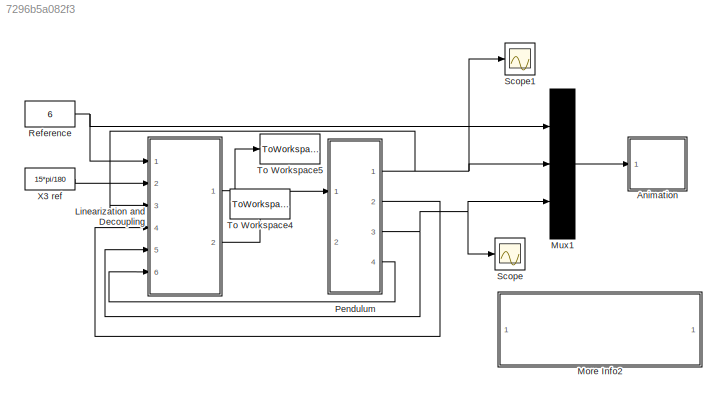
MODEL slx_7296b5a082f3
KIND model
CONFIG AbsTol = 1e-3
CONFIG EnableMultiTasking = off
CONFIG FixedStep = 0.001
CONFIG MaxStep = 0.01
CONFIG MinStep = auto
CONFIG RelTol = 1e-3
CONFIG SampleTimeConstraint = Unconstrained
CONFIG SolverName = ode5
CONFIG StartTime = 0
CONFIG StopTime = 3
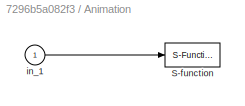
BLOCK [SubSystem] Animation
  Ports = [1]
  RequestExecContextInheritance = off
BLOCK [S-Function] Animation/S-function
  DeleteFcn = pendan([],[],[],'DeleteBlock');
  EnableBusSupport = off
  FunctionName = pendan
  Parameters = RefBlock
  Ports = [1]
  SFcnIsStateOwnerBlock = off
  SFunctionDeploymentMode = off
BLOCK [Inport] Animation/in_1
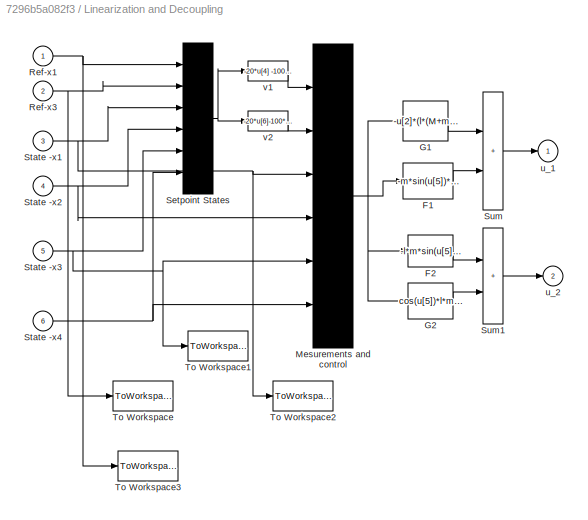
BLOCK [SubSystem] Linearization and Decoupling
  Ports = [6, 2]
  RequestExecContextInheritance = off
  ShowPortLabels = none
BLOCK [Fcn] Linearization and Decoupling/F1
  Expr = -m*sin(u[5])* l*u[6]^2+g*(M+m)*tan(u[5])
BLOCK [Fcn] Linearization and Decoupling/F2
  Expr = -l*m*sin(u[5]) *g
BLOCK [Fcn] Linearization and Decoupling/G1
  Expr = -u[2]*(l*(M+m*sin(u[3])*sin(u[3])))/cos(u[3])
BLOCK [Fcn] Linearization and Decoupling/G2
  Expr = cos(u[5])*l*m*u[1] + l*l*m*u[2]
BLOCK [Mux] Linearization and Decoupling/Mesurements and control
  Inputs = 6
  Ports = [6, 1]
BLOCK [Inport] Linearization and Decoupling/Ref-x1
BLOCK [Inport] Linearization and Decoupling/Ref-x3
  Port = 2
BLOCK [Mux] Linearization and Decoupling/Setpoint States
  Inputs = 6
  Ports = [6, 1]
BLOCK [Inport] Linearization and Decoupling/State -x1
  Port = 3
BLOCK [Inport] Linearization and Decoupling/State -x2
  Port = 4
BLOCK [Inport] Linearization and Decoupling/State -x3
  Port = 5
BLOCK [Inport] Linearization and Decoupling/State -x4
  Port = 6
BLOCK [Sum] Linearization and Decoupling/Sum
  IconShape = rectangular
  InputSameDT = on
  OutDataTypeStr = Inherit: Same as first input
  Ports = [2, 1]
  SaturateOnIntegerOverflow = on
BLOCK [Sum] Linearization and Decoupling/Sum1
  IconShape = rectangular
  InputSameDT = on
  OutDataTypeStr = Inherit: Same as first input
  Ports = [2, 1]
  SaturateOnIntegerOverflow = on
BLOCK [ToWorkspace] Linearization and Decoupling/To Workspace
  MaxDataPoints = inf
  Ports = [1]
  SampleTime = -1
  VariableName = refx3
BLOCK [ToWorkspace] Linearization and Decoupling/To Workspace1
  MaxDataPoints = inf
  Ports = [1]
  SampleTime = -1
  VariableName = x3
BLOCK [ToWorkspace] Linearization and Decoupling/To Workspace2
  MaxDataPoints = inf
  Ports = [1]
  SampleTime = -1
  VariableName = x1
BLOCK [ToWorkspace] Linearization and Decoupling/To Workspace3
  MaxDataPoints = inf
  Ports = [1]
  SampleTime = -1
  VariableName = refx1
BLOCK [Outport] Linearization and Decoupling/u_1
  VectorParamsAs1DForOutWhenUnconnected = off
BLOCK [Outport] Linearization and Decoupling/u_2
  Port = 2
  VectorParamsAs1DForOutWhenUnconnected = off
BLOCK [Fcn] Linearization and Decoupling/v1
  Expr = -20*u[4] -100*(u[3]-u[1])
BLOCK [Fcn] Linearization and Decoupling/v2
  Expr = -20*u[6]-100*(u[5]-u[2])
BLOCK [SubSystem] More Info2
  OpenFcn = cipendco
  Ports = []
  RequestExecContextInheritance = off
  ShowPortLabels = none
BLOCK [Mux] Mux1
  Inputs = 3
  Ports = [3, 1]
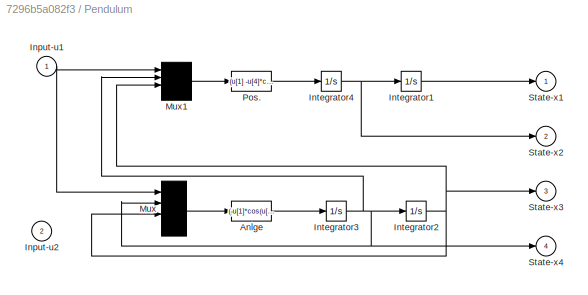
BLOCK [SubSystem] Pendulum
  Ports = [2, 4]
  RequestExecContextInheritance = off
  ShowPortLabels = none
BLOCK [Fcn] Pendulum/Anlge
  Expr = (-u[1]*cos(u[3]) + u[4]*(M+m)/(m*l) + (M+m)*g*sin(u[3]) - m*l*power(u[2],2)*sin(u[3])*cos(u[3]))/(l*(M + m*power(sin(u[3]),2)))
BLOCK [Inport] Pendulum/Input-u1
BLOCK [Inport] Pendulum/Input-u2
  Port = 2
BLOCK [Integrator] Pendulum/Integrator1
  Ports = [1, 1]
BLOCK [Integrator] Pendulum/Integrator2
  Ports = [1, 1]
BLOCK [Integrator] Pendulum/Integrator3
  Ports = [1, 1]
BLOCK [Integrator] Pendulum/Integrator4
  Ports = [1, 1]
BLOCK [Mux] Pendulum/Mux
  Ports = [4, 1]
BLOCK [Mux] Pendulum/Mux1
  Ports = [4, 1]
BLOCK [Fcn] Pendulum/Pos.
  Expr = (u[1] -u[4]*cos(u[3])/l- m*g*sin(u[3])*cos(u[3]) + m*l*power(u[2],2)*sin(u[3]))/(M +m* power(sin(u[3]),2))
BLOCK [Outport] Pendulum/State-x1
  VectorParamsAs1DForOutWhenUnconnected = off
BLOCK [Outport] Pendulum/State-x2
  Port = 2
  VectorParamsAs1DForOutWhenUnconnected = off
BLOCK [Outport] Pendulum/State-x3
  Port = 3
  VectorParamsAs1DForOutWhenUnconnected = off
BLOCK [Outport] Pendulum/State-x4
  Port = 4
  VectorParamsAs1DForOutWhenUnconnected = off
BLOCK [Constant] Reference
  Value = 6
BLOCK [Scope] Scope
  Floating = off
  NumInputPorts = 1
  Ports = [1]
  ScopeSpecificationString = Simulink.scopes.TimeScopeBlockCfg('CurrentConfiguration', extmgr.ConfigurationSet(extmgr.Configuration('Core','General UI',true),extmgr.Configuration('Core','Source UI',true),extmgr.Configuration('Sources','WiredSimulink',true),extmgr.Configuration('Visuals','Time Domain',true,'SerializedDisplays',{struct('MinYLimReal','-2670366990065.57031','MaxYLimReal','1235647563057.4502','YLabelReal','','MinY...<+1452ch>
BLOCK [Scope] Scope1
  Floating = off
  NumInputPorts = 1
  Ports = [1]
  ScopeSpecificationString = Simulink.scopes.TimeScopeBlockCfg('CurrentConfiguration', extmgr.ConfigurationSet(extmgr.Configuration('Core','General UI',true),extmgr.Configuration('Core','Source UI',true),extmgr.Configuration('Sources','WiredSimulink',true,'DataLoggingVariableName','ScopeData1'),extmgr.Configuration('Visuals','Time Domain',true,'SerializedDisplays',{struct('MinYLimReal','-16221876558399.86523','MaxYLimReal','8...<+1469ch>
BLOCK [ToWorkspace] To Workspace4
  MaxDataPoints = inf
  NameLocation = right
  Ports = [1]
  SampleTime = -1
  VariableName = u2
BLOCK [ToWorkspace] To Workspace5
  MaxDataPoints = inf
  Ports = [1]
  SampleTime = -1
  VariableName = u1
BLOCK [Constant] X3 ref
  Value = 15*pi/180
LINE Animation/in_1:1 -> Animation/S-function:1
LINE Linearization and Decoupling/F1:1 -> Linearization and Decoupling/Sum:2
LINE Linearization and Decoupling/F2:1 -> Linearization and Decoupling/Sum1:1
LINE Linearization and Decoupling/G1:1 -> Linearization and Decoupling/Sum:1
LINE Linearization and Decoupling/G2:1 -> Linearization and Decoupling/Sum1:2
NET Linearization and Decoupling/Mesurements and control:1 -> Linearization and Decoupling/F1:1, Linearization and Decoupling/F2:1, Linearization and Decoupling/G1:1, Linearization and Decoupling/G2:1
NET Linearization and Decoupling/Ref-x1:1 -> Linearization and Decoupling/Setpoint States:1, Linearization and Decoupling/To Workspace3:1
NET Linearization and Decoupling/Ref-x3:1 -> Linearization and Decoupling/Setpoint States:2, Linearization and Decoupling/To Workspace:1
NET Linearization and Decoupling/Setpoint States:1 -> Linearization and Decoupling/v1:1, Linearization and Decoupling/v2:1
NET Linearization and Decoupling/State -x1:1 -> Linearization and Decoupling/Mesurements and control:3, Linearization and Decoupling/Setpoint States:3, Linearization and Decoupling/To Workspace2:1
NET Linearization and Decoupling/State -x2:1 -> Linearization and Decoupling/Mesurements and control:4, Linearization and Decoupling/Setpoint States:4
NET Linearization and Decoupling/State -x3:1 -> Linearization and Decoupling/Mesurements and control:5, Linearization and Decoupling/Setpoint States:5, Linearization and Decoupling/To Workspace1:1
NET Linearization and Decoupling/State -x4:1 -> Linearization and Decoupling/Mesurements and control:6, Linearization and Decoupling/Setpoint States:6
LINE Linearization and Decoupling/Sum1:1 -> Linearization and Decoupling/u_2:1
LINE Linearization and Decoupling/Sum:1 -> Linearization and Decoupling/u_1:1
LINE Linearization and Decoupling/v1:1 -> Linearization and Decoupling/Mesurements and control:1
LINE Linearization and Decoupling/v2:1 -> Linearization and Decoupling/Mesurements and control:2
NET Linearization and Decoupling:1 -> Pendulum:1, To Workspace5:1
LINE Linearization and Decoupling:2 -> To Workspace4:1
LINE Mux1:1 -> Animation:1
LINE Pendulum/Anlge:1 -> Pendulum/Integrator3:1
NET Pendulum/Input-u1:1 -> Pendulum/Mux1:1, Pendulum/Mux:1
LINE Pendulum/Integrator1:1 -> Pendulum/State-x1:1
NET Pendulum/Integrator2:1 -> Pendulum/Mux1:3, Pendulum/Mux:3, Pendulum/State-x3:1
NET Pendulum/Integrator3:1 -> Pendulum/Integrator2:1, Pendulum/Mux1:2, Pendulum/Mux:2, Pendulum/State-x4:1
NET Pendulum/Integrator4:1 -> Pendulum/Integrator1:1, Pendulum/State-x2:1
LINE Pendulum/Mux1:1 -> Pendulum/Pos.:1
LINE Pendulum/Mux:1 -> Pendulum/Anlge:1
LINE Pendulum/Pos.:1 -> Pendulum/Integrator4:1
NET Pendulum:1 -> Linearization and Decoupling:3, Mux1:2, Scope1:1
LINE Pendulum:2 -> Linearization and Decoupling:4
NET Pendulum:3 -> Linearization and Decoupling:5, Mux1:3, Scope:1
LINE Pendulum:4 -> Linearization and Decoupling:6
NET Reference:1 -> Linearization and Decoupling:1, Mux1:1
LINE X3 ref:1 -> Linearization and Decoupling:2
note: NET lines group one-source signal fan-out (src -> all destinations, sorted); 1:1 wires keep LINE
